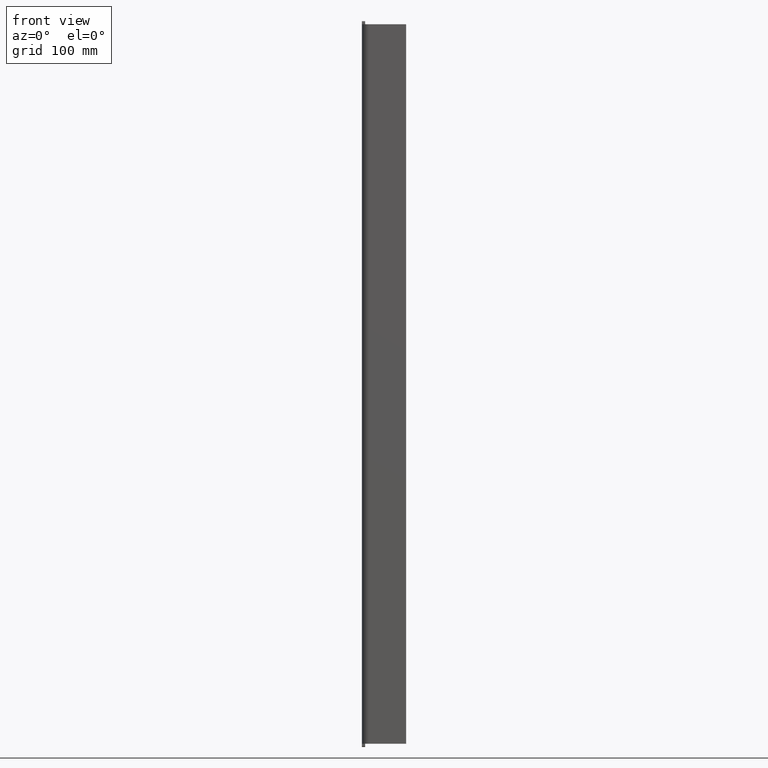
[diagram: clean part render]
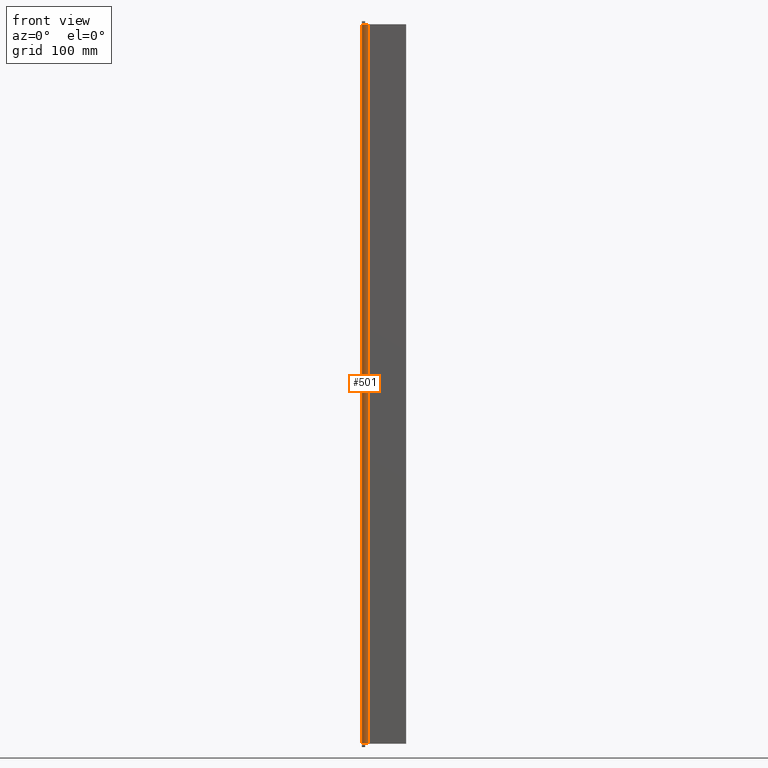
[diagram: same view with one face highlighted and labeled with its STEP entity id]
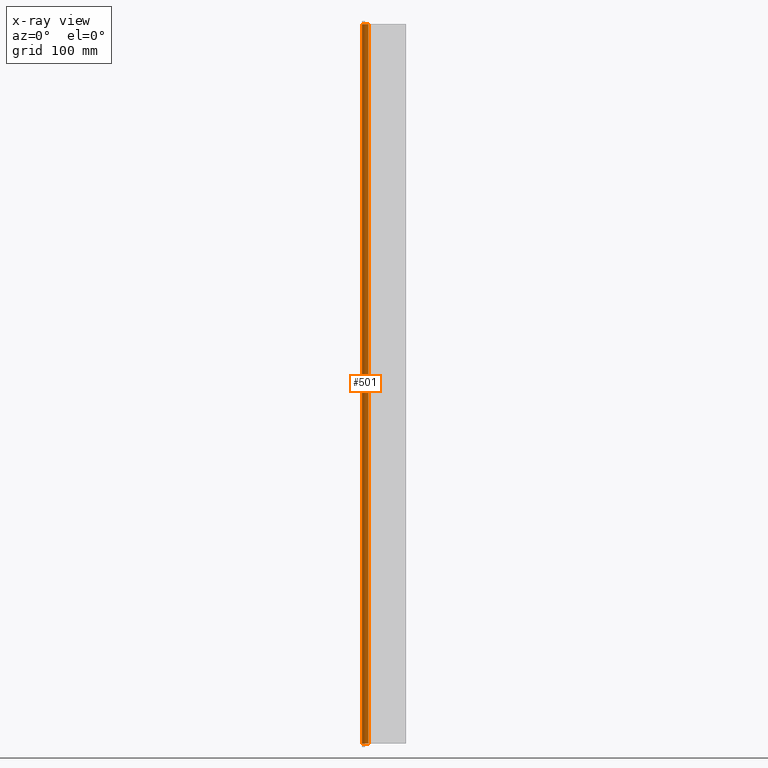
[diagram: x-ray of the same camera — body ghosted, the highlighted face saturated]
A machine part, front view. The second image highlights one B-rep face of the part: STEP entity #501.
The next image is the same camera in x-ray: the body ghosted, the highlighted face saturated — about 0% of this face is hidden behind the body in this view.
In plain terms, the highlighted cylindrical surface (edge-blend (fillet) strip) has radius 6 mm, axis along (0, 0, -1).
Its self-contained STEP definition (entity closure, byte-faithful):
#41 = LINE ( 'NONE', #1165, #1266 ) ;
#51 = DIRECTION ( 'NONE',  ( -1.000000000000000000, 0.000000000000000000, 0.000000000000000000 ) ) ;
#57 = CYLINDRICAL_SURFACE ( 'NONE', #391, 6.000000000000005329 ) ;
#157 = EDGE_LOOP ( 'NONE', ( #1108, #1101, #1141, #290 ) ) ;
#158 = CARTESIAN_POINT ( 'NONE',  ( -343.9999999999996589, -1160.305262667904117, 25.00000000000045119 ) ) ;
#170 = CARTESIAN_POINT ( 'NONE',  ( -349.9999999999996589, -1160.305262667904117, -624.9999999999997726 ) ) ;
#203 = CARTESIAN_POINT ( 'NONE',  ( -349.9999999999996589, -1160.305262667904117, 25.00000000000045119 ) ) ;
#273 = DIRECTION ( 'NONE',  ( 0.000000000000000000, 0.000000000000000000, -1.000000000000000000 ) ) ;
#290 = ORIENTED_EDGE ( 'NONE', *, *, #581, .F. ) ;
#371 = DIRECTION ( 'NONE',  ( 0.000000000000000000, 0.000000000000000000, -1.000000000000000000 ) ) ;
#391 = AXIS2_PLACEMENT_3D ( 'NONE', #459, #1049, #1253 ) ;
#399 = DIRECTION ( 'NONE',  ( -0.000000000000000000, -0.000000000000000000, 1.000000000000000000 ) ) ;
#409 = CARTESIAN_POINT ( 'NONE',  ( -343.9999999999996589, -1166.305262667904117, 25.00000000000045119 ) ) ;
#431 = CARTESIAN_POINT ( 'NONE',  ( -343.9999999999996589, -1166.305262667904117, -624.9999999999997726 ) ) ;
#435 = VERTEX_POINT ( 'NONE', #409 ) ;
#459 = CARTESIAN_POINT ( 'NONE',  ( -343.9999999999996589, -1160.305262667904117, 104.7558775263622834 ) ) ;
#501 = ADVANCED_FACE ( 'NONE', ( #667 ), #57, .T. ) ;
#581 = EDGE_CURVE ( 'NONE', #435, #811, #41, .T. ) ;
#619 = AXIS2_PLACEMENT_3D ( 'NONE', #806, #399, #1299 ) ;
#632 = VERTEX_POINT ( 'NONE', #203 ) ;
#667 = FACE_OUTER_BOUND ( 'NONE', #157, .T. ) ;
#670 = CARTESIAN_POINT ( 'NONE',  ( -349.9999999999996589, -1160.305262667904117, 104.7558775263622834 ) ) ;
#721 = VECTOR ( 'NONE', #877, 1000.000000000000000 ) ;
#806 = CARTESIAN_POINT ( 'NONE',  ( -343.9999999999996589, -1160.305262667904117, -624.9999999999997726 ) ) ;
#811 = VERTEX_POINT ( 'NONE', #431 ) ;
#877 = DIRECTION ( 'NONE',  ( -0.000000000000000000, -0.000000000000000000, 1.000000000000000000 ) ) ;
#939 = CIRCLE ( 'NONE', #619, 6.000000000000005329 ) ;
#1014 = AXIS2_PLACEMENT_3D ( 'NONE', #158, #371, #51 ) ;
#1049 = DIRECTION ( 'NONE',  ( 0.000000000000000000, 0.000000000000000000, -1.000000000000000000 ) ) ;
#1075 = EDGE_CURVE ( 'NONE', #1222, #632, #1163, .T. ) ;
#1101 = ORIENTED_EDGE ( 'NONE', *, *, #1075, .F. ) ;
#1108 = ORIENTED_EDGE ( 'NONE', *, *, #1125, .T. ) ;
#1125 = EDGE_CURVE ( 'NONE', #435, #632, #1285, .T. ) ;
#1141 = ORIENTED_EDGE ( 'NONE', *, *, #1257, .T. ) ;
#1163 = LINE ( 'NONE', #670, #721 ) ;
#1165 = CARTESIAN_POINT ( 'NONE',  ( -343.9999999999996589, -1166.305262667904117, 104.7558775263622834 ) ) ;
#1222 = VERTEX_POINT ( 'NONE', #170 ) ;
#1253 = DIRECTION ( 'NONE',  ( -1.000000000000000000, 0.000000000000000000, 0.000000000000000000 ) ) ;
#1257 = EDGE_CURVE ( 'NONE', #1222, #811, #939, .T. ) ;
#1266 = VECTOR ( 'NONE', #273, 1000.000000000000000 ) ;
#1285 = CIRCLE ( 'NONE', #1014, 6.000000000000005329 ) ;
#1299 = DIRECTION ( 'NONE',  ( -1.000000000000000000, 0.000000000000000000, 0.000000000000000000 ) ) ;